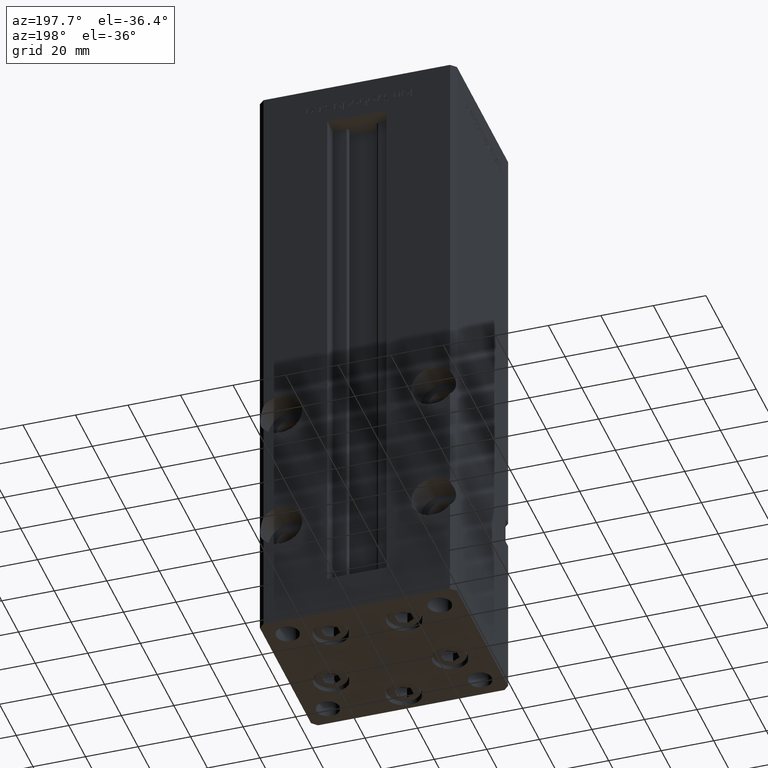
[diagram: clean part render]
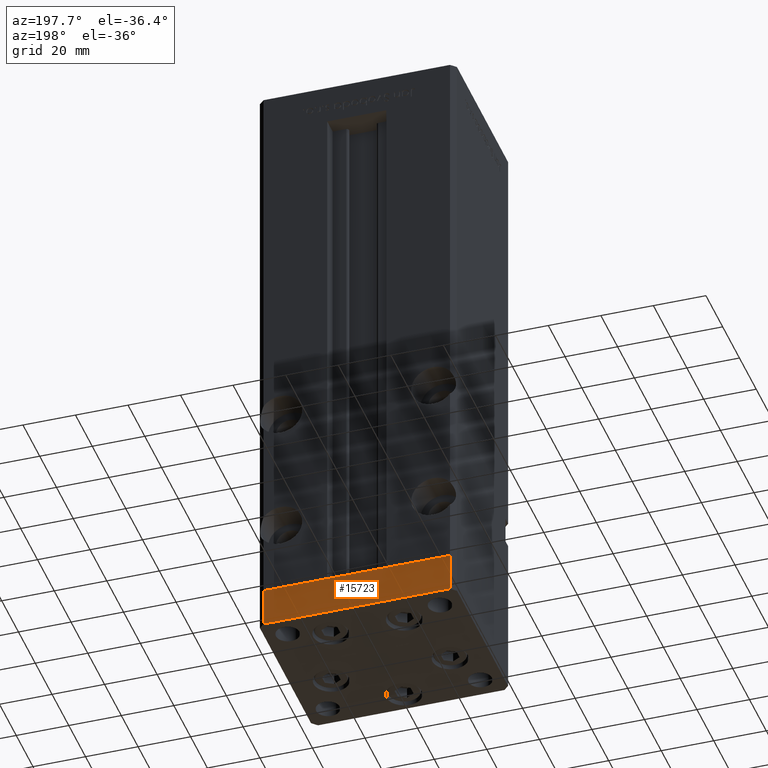
[diagram: same view with one face highlighted and labeled with its STEP entity id]
A machine part, auxiliary view. The second image highlights one B-rep face of the part: STEP entity #15723.
In plain terms, the highlighted planar face has unit normal (-0, 1, 0).
Its self-contained STEP definition (entity closure, byte-faithful):
#776 = LINE ( 'NONE', #8811, #9032 ) ;
#3165 = AXIS2_PLACEMENT_3D ( 'NONE', #45546, #45008, #28861 ) ;
#3612 = ORIENTED_EDGE ( 'NONE', *, *, #11782, .F. ) ;
#3951 = EDGE_CURVE ( 'NONE', #48677, #43689, #39357, .T. ) ;
#5161 = CARTESIAN_POINT ( 'NONE',  ( -35.50000000000002842, 32.49999999999999289, 0.000000000000000000 ) ) ;
#5388 = EDGE_LOOP ( 'NONE', ( #13240, #3612, #9226, #8005 ) ) ;
#7098 = CARTESIAN_POINT ( 'NONE',  ( -35.50000000000002842, 32.49999999999999289, -15.00000000000000000 ) ) ;
#8005 = ORIENTED_EDGE ( 'NONE', *, *, #3951, .T. ) ;
#8811 = CARTESIAN_POINT ( 'NONE',  ( 35.49999999999992184, 32.50000000000000711, -15.00000000000000000 ) ) ;
#9032 = VECTOR ( 'NONE', #9874, 1000.000000000000000 ) ;
#9226 = ORIENTED_EDGE ( 'NONE', *, *, #24930, .T. ) ;
#9874 = DIRECTION ( 'NONE',  ( 0.000000000000000000, 0.000000000000000000, 1.000000000000000000 ) ) ;
#11658 = DIRECTION ( 'NONE',  ( 0.000000000000000000, 0.000000000000000000, 1.000000000000000000 ) ) ;
#11782 = EDGE_CURVE ( 'NONE', #45774, #44384, #776, .T. ) ;
#13240 = ORIENTED_EDGE ( 'NONE', *, *, #41861, .F. ) ;
#15047 = DIRECTION ( 'NONE',  ( -1.000000000000000000, -1.954618001100629052E-16, 0.000000000000000000 ) ) ;
#15723 = ADVANCED_FACE ( 'NONE', ( #32122 ), #49066, .T. ) ;
#16113 = CARTESIAN_POINT ( 'NONE',  ( 35.49999999999992184, 32.50000000000000711, 0.000000000000000000 ) ) ;
#18253 = VECTOR ( 'NONE', #11658, 1000.000000000000000 ) ;
#23128 = LINE ( 'NONE', #16113, #41928 ) ;
#24930 = EDGE_CURVE ( 'NONE', #45774, #48677, #39703, .T. ) ;
#27826 = CARTESIAN_POINT ( 'NONE',  ( 35.49999999999992184, 32.50000000000000711, 0.000000000000000000 ) ) ;
#28861 = DIRECTION ( 'NONE',  ( -1.000000000000000000, -1.954618001100629052E-16, 0.000000000000000000 ) ) ;
#31637 = DIRECTION ( 'NONE',  ( -1.000000000000000000, -1.954618001100629052E-16, 0.000000000000000000 ) ) ;
#32122 = FACE_OUTER_BOUND ( 'NONE', #5388, .T. ) ;
#35914 = VECTOR ( 'NONE', #31637, 1000.000000000000000 ) ;
#38487 = CARTESIAN_POINT ( 'NONE',  ( -35.50000000000002842, 32.49999999999999289, -15.00000000000000000 ) ) ;
#39357 = LINE ( 'NONE', #7098, #18253 ) ;
#39703 = LINE ( 'NONE', #52091, #35914 ) ;
#41861 = EDGE_CURVE ( 'NONE', #44384, #43689, #23128, .T. ) ;
#41928 = VECTOR ( 'NONE', #15047, 1000.000000000000000 ) ;
#43689 = VERTEX_POINT ( 'NONE', #5161 ) ;
#44384 = VERTEX_POINT ( 'NONE', #27826 ) ;
#45008 = DIRECTION ( 'NONE',  ( -1.954618001100629052E-16, 1.000000000000000000, 0.000000000000000000 ) ) ;
#45546 = CARTESIAN_POINT ( 'NONE',  ( 35.49999999999992184, 32.50000000000000711, -15.00000000000000000 ) ) ;
#45774 = VERTEX_POINT ( 'NONE', #48954 ) ;
#48677 = VERTEX_POINT ( 'NONE', #38487 ) ;
#48954 = CARTESIAN_POINT ( 'NONE',  ( 35.49999999999992184, 32.50000000000000711, -15.00000000000000000 ) ) ;
#49066 = PLANE ( 'NONE',  #3165 ) ;
#52091 = CARTESIAN_POINT ( 'NONE',  ( 35.49999999999992184, 32.50000000000000711, -15.00000000000000000 ) ) ;